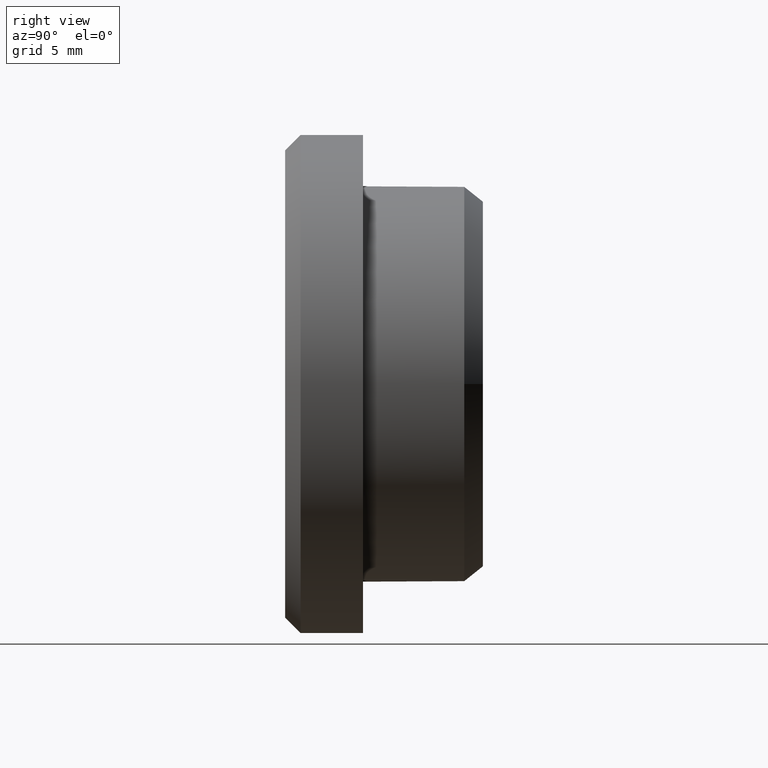
[diagram: clean part render]
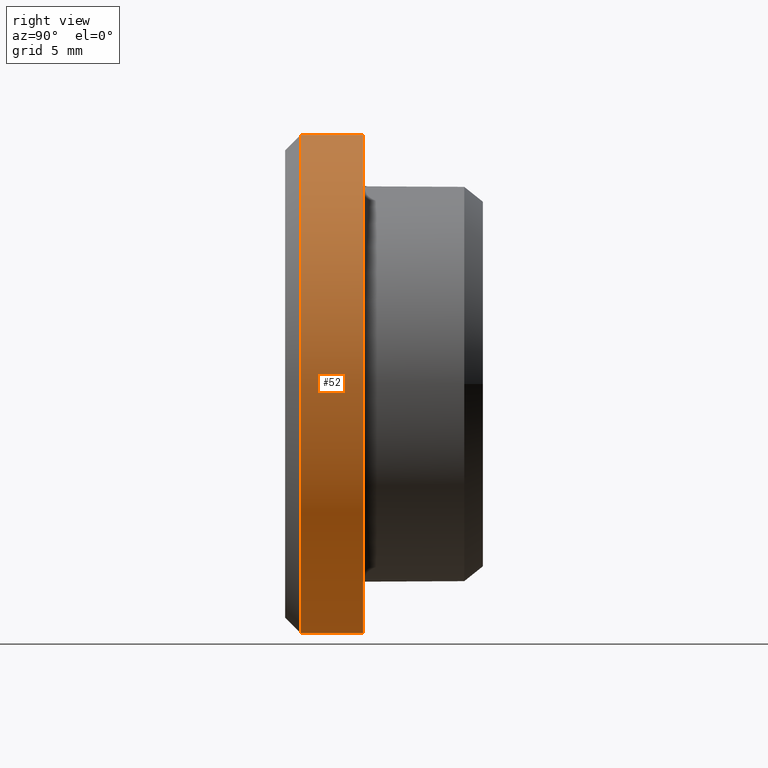
[diagram: same view with one face highlighted and labeled with its STEP entity id]
A machine part, right view. The second image highlights one B-rep face of the part: STEP entity #52.
In plain terms, the highlighted cylindrical surface (bore or boss wall) has radius 16 mm, axis along (-0, 1, 0).
Its self-contained STEP definition (entity closure, byte-faithful):
#23 = DIRECTION ( 'NONE',  ( -3.414809992080329023E-17, 1.000000000000000000, 0.000000000000000000 ) ) ;
#36 = VERTEX_POINT ( 'NONE', #95 ) ;
#39 = EDGE_LOOP ( 'NONE', ( #64 ) ) ;
#45 = FACE_OUTER_BOUND ( 'NONE', #356, .T. ) ;
#52 = ADVANCED_FACE ( 'NONE', ( #158, #45 ), #103, .T. ) ;
#64 = ORIENTED_EDGE ( 'NONE', *, *, #161, .F. ) ;
#70 = VERTEX_POINT ( 'NONE', #299 ) ;
#77 = DIRECTION ( 'NONE',  ( -1.000000000000000000, 0.000000000000000000, 0.000000000000000000 ) ) ;
#95 = CARTESIAN_POINT ( 'NONE',  ( -15.99999999999999645, -7.399999999999985256, 0.000000000000000000 ) ) ;
#103 = CYLINDRICAL_SURFACE ( 'NONE', #307, 15.99999999999999645 ) ;
#119 = ORIENTED_EDGE ( 'NONE', *, *, #227, .T. ) ;
#158 = FACE_OUTER_BOUND ( 'NONE', #39, .T. ) ;
#161 = EDGE_CURVE ( 'NONE', #36, #36, #245, .T. ) ;
#163 = AXIS2_PLACEMENT_3D ( 'NONE', #211, #330, #181 ) ;
#166 = CIRCLE ( 'NONE', #180, 15.99999999999999645 ) ;
#180 = AXIS2_PLACEMENT_3D ( 'NONE', #233, #263, #316 ) ;
#181 = DIRECTION ( 'NONE',  ( -1.000000000000000000, -5.421010862427523403E-17, 0.000000000000000000 ) ) ;
#211 = CARTESIAN_POINT ( 'NONE',  ( -6.259272319258516522E-31, -7.399999999999984368, 0.000000000000000000 ) ) ;
#227 = EDGE_CURVE ( 'NONE', #70, #70, #166, .T. ) ;
#233 = CARTESIAN_POINT ( 'NONE',  ( 1.365923996832131856E-16, -11.40000000000000391, 0.000000000000000000 ) ) ;
#245 = CIRCLE ( 'NONE', #163, 15.99999999999999645 ) ;
#247 = CARTESIAN_POINT ( 'NONE',  ( 1.707404996040190150E-16, -12.40000000000007674, 0.000000000000000000 ) ) ;
#263 = DIRECTION ( 'NONE',  ( -3.414809992080329023E-17, 1.000000000000000000, 0.000000000000000000 ) ) ;
#299 = CARTESIAN_POINT ( 'NONE',  ( -15.99999999999999645, -11.40000000000000391, 0.000000000000000000 ) ) ;
#307 = AXIS2_PLACEMENT_3D ( 'NONE', #247, #23, #77 ) ;
#316 = DIRECTION ( 'NONE',  ( -1.000000000000000000, 0.000000000000000000, 0.000000000000000000 ) ) ;
#330 = DIRECTION ( 'NONE',  ( -3.414809992080329023E-17, 1.000000000000000000, 0.000000000000000000 ) ) ;
#356 = EDGE_LOOP ( 'NONE', ( #119 ) ) ;